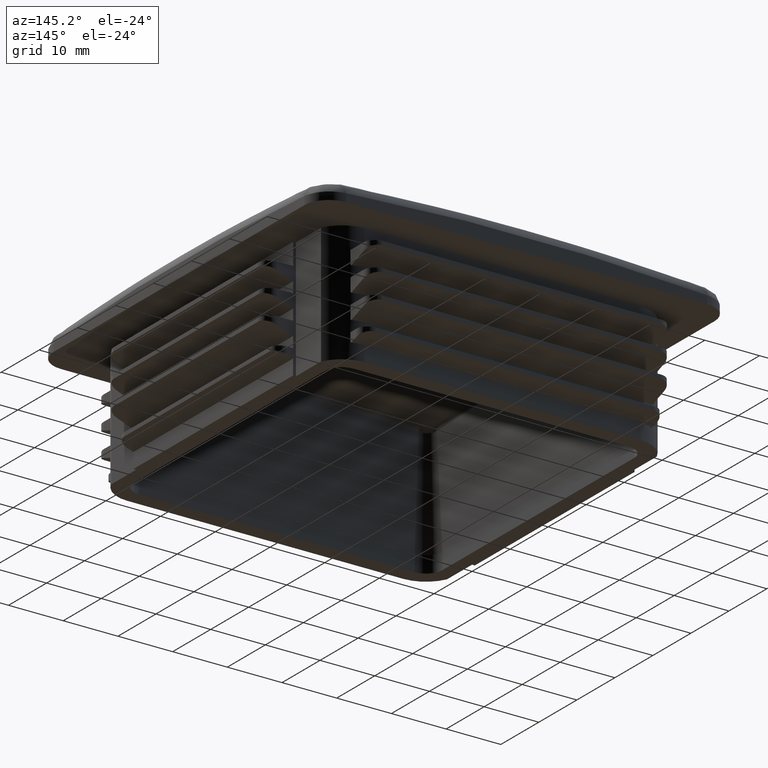
[diagram: clean part render]
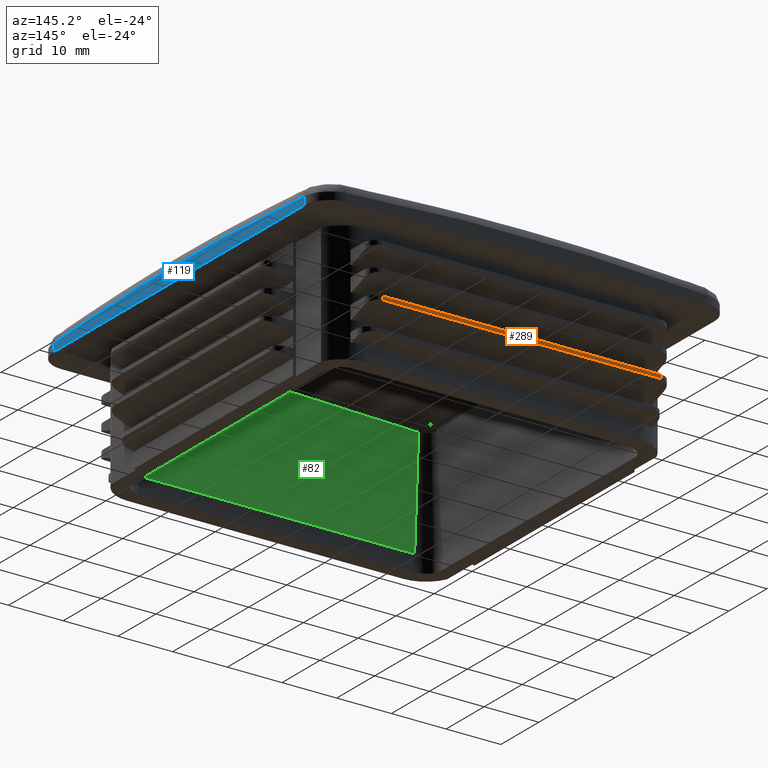
[diagram: same view with three faces highlighted in distinct colors, each labeled with its STEP entity id]
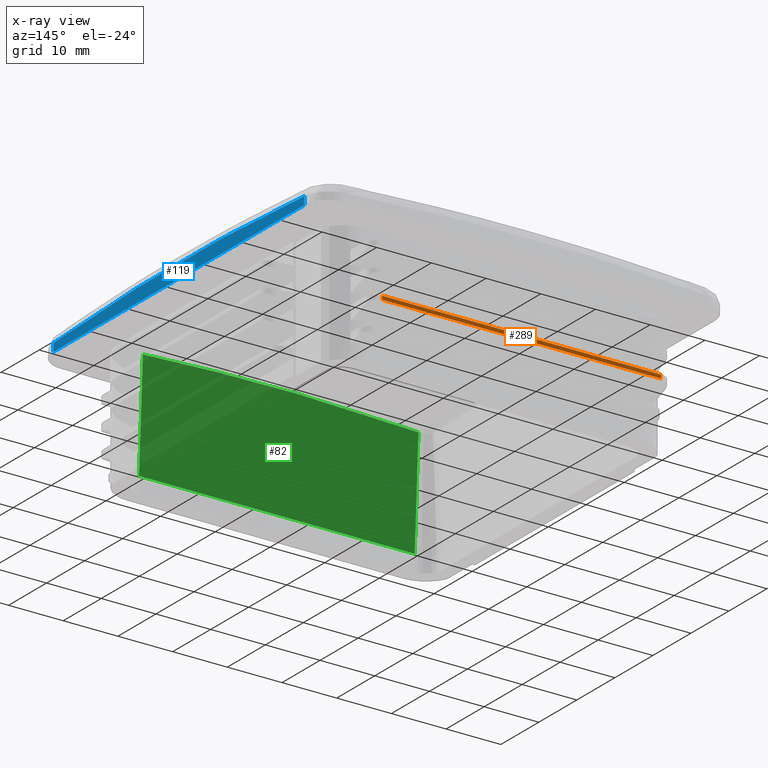
[diagram: x-ray of the same camera — body ghosted, the three highlighted faces saturated]
A machine part, auxiliary view with three faces highlighted in distinct colors.
The next image is the same camera in x-ray (body ghosted, the three faces saturated) — at least one of them is partly hidden behind the body in this view.
Their STEP definitions:

[orange] entity #289 — the highlighted planar face has unit normal (0, 1, -0).
#289 = ADVANCED_FACE( '', ( #767 ), #768, .T. );
#767 = FACE_OUTER_BOUND( '', #3423, .T. );
#768 = PLANE( '', #3424 );
#3423 = EDGE_LOOP( '', ( #5255, #5256, #5257, #5258 ) );
#3424 = AXIS2_PLACEMENT_3D( '', #5259, #5260, #5261 );
#5255 = ORIENTED_EDGE( '', *, *, #6155, .T. );
#5256 = ORIENTED_EDGE( '', *, *, #6156, .T. );
#5257 = ORIENTED_EDGE( '', *, *, #6149, .F. );
#5258 = ORIENTED_EDGE( '', *, *, #6157, .T. );
#5259 = CARTESIAN_POINT( '', ( -27.5000000000000, 36.2000000000000, 8.31985117133102 ) );
#5260 = DIRECTION( '', ( 6.12303176911189E-017, 1.00000000000000, -1.30563789952382E-016 ) );
#5261 = DIRECTION( '', ( 9.81400971114055E-032, -1.30563789952382E-016, -1.00000000000000 ) );
#6149 = EDGE_CURVE( '', #7222, #7223, #7224, .T. );
#6155 = EDGE_CURVE( '', #7232, #7233, #7234, .T. );
#6156 = EDGE_CURVE( '', #7233, #7223, #7235, .F. );
#6157 = EDGE_CURVE( '', #7222, #7232, #7236, .T. );
#7222 = VERTEX_POINT( '', #10425 );
#7223 = VERTEX_POINT( '', #10426 );
#7224 = LINE( '', #10427, #10428 );
#7232 = VERTEX_POINT( '', #10439 );
#7233 = VERTEX_POINT( '', #10440 );
#7234 = LINE( '', #10441, #10442 );
#7235 = LINE( '', #10443, #10444 );
#7236 = LINE( '', #10445, #10446 );
#10425 = CARTESIAN_POINT( '', ( -25.5000000000000, 36.2000000000000, 8.31985117133101 ) );
#10426 = CARTESIAN_POINT( '', ( 25.5000000000000, 36.2000000000000, 8.31985117133101 ) );
#10427 = CARTESIAN_POINT( '', ( -27.5000000000000, 36.2000000000000, 8.31985117133101 ) );
#10428 = VECTOR( '', #11267, 1000.00000000000 );
#10439 = CARTESIAN_POINT( '', ( -25.5000000000000, 36.2000000000000, 9.00000000000000 ) );
#10440 = CARTESIAN_POINT( '', ( 25.5000000000000, 36.2000000000000, 9.00000000000000 ) );
#10441 = CARTESIAN_POINT( '', ( -27.5000000000000, 36.2000000000000, 9.00000000000000 ) );
#10442 = VECTOR( '', #11277, 1000.00000000000 );
#10443 = CARTESIAN_POINT( '', ( 25.5000000000000, 36.2000000000000, 8.31985117133102 ) );
#10444 = VECTOR( '', #11278, 1000.00000000000 );
#10445 = CARTESIAN_POINT( '', ( -25.5000000000000, 36.2000000000000, 9.00000000000000 ) );
#10446 = VECTOR( '', #11279, 1000.00000000000 );
#11267 = DIRECTION( '', ( 1.00000000000000, -6.12303176911189E-017, 1.06134559449146E-031 ) );
#11277 = DIRECTION( '', ( 1.00000000000000, -6.12303176911189E-017, 1.06134559449146E-031 ) );
#11278 = DIRECTION( '', ( -3.45225119498087E-033, 1.30563789952382E-016, 1.00000000000000 ) );
#11279 = DIRECTION( '', ( -3.45225119498087E-033, 1.30563789952382E-016, 1.00000000000000 ) );

[blue] entity #119 — the highlighted planar face has unit normal (1, 0, 0).
#119 = ADVANCED_FACE( '', ( #426 ), #427, .T. );
#426 = FACE_OUTER_BOUND( '', #2901, .T. );
#427 = PLANE( '', #2902 );
#2901 = EDGE_LOOP( '', ( #3896, #3897, #3898, #3899 ) );
#2902 = AXIS2_PLACEMENT_3D( '', #3900, #3901, #3902 );
#3896 = ORIENTED_EDGE( '', *, *, #5759, .T. );
#3897 = ORIENTED_EDGE( '', *, *, #5761, .T. );
#3898 = ORIENTED_EDGE( '', *, *, #5762, .F. );
#3899 = ORIENTED_EDGE( '', *, *, #5777, .T. );
#3900 = CARTESIAN_POINT( '', ( 37.5000000000000, -33.0000000000000, -115.897606542837 ) );
#3901 = DIRECTION( '', ( 1.00000000000000, 0.000000000000000, 0.000000000000000 ) );
#3902 = DIRECTION( '', ( 0.000000000000000, 1.00000000000000, 0.000000000000000 ) );
#5759 = EDGE_CURVE( '', #6613, #6604, #6614, .T. );
#5761 = EDGE_CURVE( '', #6604, #6610, #6616, .T. );
#5762 = EDGE_CURVE( '', #6617, #6610, #6618, .T. );
#5777 = EDGE_CURVE( '', #6617, #6613, #6642, .T. );
#6604 = VERTEX_POINT( '', #9067 );
#6610 = VERTEX_POINT( '', #9122 );
#6613 = VERTEX_POINT( '', #9172 );
#6614 = LINE( '', #9173, #9174 );
#6616 = B_SPLINE_CURVE_WITH_KNOTS( '', 3, ( #9176, #9177, #9178, #9179, #9180, #9181, #9182, #9183, #9184, #9185, #9186, #9187, #9188, #9189, #9190, #9191, #9192, #9193, #9194, #9195, #9196 ), .UNSPECIFIED., .F., .F., ( 4, 2, 2, 2, 1, 1, 2, 1, 2, 2, 2, 4 ), ( 0.000000000000000, 0.00826076264689988, 0.0165215252937998, 0.0175541206246622, 0.0185867159555247, 0.0206519066172497, 0.0247822879406997, 0.0330430505875996, 0.0413038132344995, 0.0495645758813994, 0.0578253385282993, 0.0660861011751993 ), .UNSPECIFIED. );
#6617 = VERTEX_POINT( '', #9197 );
#6618 = LINE( '', #9198, #9199 );
#6642 = LINE( '', #9232, #9233 );
#9067 = CARTESIAN_POINT( '', ( 37.5000000000000, 33.0000000000000, 23.4707866158288 ) );
#9122 = CARTESIAN_POINT( '', ( 37.5000000000000, -33.0000000000000, 23.4707866158287 ) );
#9172 = CARTESIAN_POINT( '', ( 37.5000000000000, 33.0000000000000, 22.0000000000000 ) );
#9173 = CARTESIAN_POINT( '', ( 37.5000000000000, 33.0000000000000, -115.897606542837 ) );
#9174 = VECTOR( '', #10764, 1000.00000000000 );
#9176 = CARTESIAN_POINT( '', ( 37.5000000000000, 33.0000000000000, 23.4707866158288 ) );
#9177 = CARTESIAN_POINT( '', ( 37.5000000000000, 30.2524882750617, 23.6601460097570 ) );
#9178 = CARTESIAN_POINT( '', ( 37.5000000000000, 27.5037895216311, 23.8262044195161 ) );
#9179 = CARTESIAN_POINT( '', ( 37.5000000000000, 22.0040013968772, 24.1113941854427 ) );
#9180 = CARTESIAN_POINT( '', ( 37.5000000000000, 19.2529119375477, 24.2305238140784 ) );
#9181 = CARTESIAN_POINT( '', ( 37.5000000000000, 16.1565787595487, 24.3378966500946 ) );
#9182 = CARTESIAN_POINT( '', ( 37.5000000000000, 15.8125163182897, 24.3494570180182 ) );
#9183 = CARTESIAN_POINT( '', ( 37.5000000000000, 15.1243845295119, 24.3718355109569 ) );
#9184 = CARTESIAN_POINT( '', ( 37.5000000000000, 14.0922070957939, 24.4042889410379 ) );
#9185 = CARTESIAN_POINT( '', ( 37.5000000000000, 11.6839349423085, 24.4722072616271 ) );
#9186 = CARTESIAN_POINT( '', ( 37.5000000000000, 9.61994524987886, 24.5170188627936 ) );
#9187 = CARTESIAN_POINT( '', ( 37.5000000000000, 5.49229153445695, 24.5887207628098 ) );
#9188 = CARTESIAN_POINT( '', ( 37.5000000000000, -0.0103779633909322, 24.6365145816506 ) );
#9189 = CARTESIAN_POINT( '', ( 37.5000000000000, -5.51130623134273, 24.5884900528051 ) );
#9190 = CARTESIAN_POINT( '', ( 37.5000000000000, -11.0113673688849, 24.4927481011985 ) );
#9191 = CARTESIAN_POINT( '', ( 37.5000000000000, -13.7609644904649, 24.4210249082017 ) );
#9192 = CARTESIAN_POINT( '', ( 37.5000000000000, -19.2592986269129, 24.2302476073469 ) );
#9193 = CARTESIAN_POINT( '', ( 37.5000000000000, -22.0080357408729, 24.1111989524311 ) );
#9194 = CARTESIAN_POINT( '', ( 37.5000000000000, -27.5046566720554, 23.8261454746318 ) );
#9195 = CARTESIAN_POINT( '', ( 37.5000000000000, -30.2525405212099, 23.6601424089356 ) );
#9196 = CARTESIAN_POINT( '', ( 37.5000000000000, -33.0000000000000, 23.4707866158287 ) );
#9197 = CARTESIAN_POINT( '', ( 37.5000000000000, -33.0000000000000, 22.0000000000000 ) );
#9198 = CARTESIAN_POINT( '', ( 37.5000000000000, -33.0000000000000, -115.897606542837 ) );
#9199 = VECTOR( '', #10768, 1000.00000000000 );
#9232 = CARTESIAN_POINT( '', ( 37.5000000000000, -2.40001952768610E-031, 22.0000000000000 ) );
#9233 = VECTOR( '', #10793, 1000.00000000000 );
#10764 = DIRECTION( '', ( 0.000000000000000, 0.000000000000000, 1.00000000000000 ) );
#10768 = DIRECTION( '', ( 0.000000000000000, 0.000000000000000, 1.00000000000000 ) );
#10793 = DIRECTION( '', ( 0.000000000000000, 1.00000000000000, -6.12303176911189E-017 ) );

[green] entity #82 — the highlighted planar face has unit normal (-0, -0.9986, 0.0523).
#82 = ADVANCED_FACE( '', ( #342 ), #343, .F. );
#342 = FACE_OUTER_BOUND( '', #1177, .T. );
#343 = PLANE( '', #1178 );
#1177 = EDGE_LOOP( '', ( #3573, #3574, #3575, #3576 ) );
#1178 = AXIS2_PLACEMENT_3D( '', #3577, #3578, #3579 );
#3573 = ORIENTED_EDGE( '', *, *, #5598, .F. );
#3574 = ORIENTED_EDGE( '', *, *, #5585, .T. );
#3575 = ORIENTED_EDGE( '', *, *, #5599, .T. );
#3576 = ORIENTED_EDGE( '', *, *, #5600, .F. );
#3577 = CARTESIAN_POINT( '', ( -25.2000000000000, -28.2000000000000, 3.00000000000000 ) );
#3578 = DIRECTION( '', ( -4.92362374229332E-032, -0.998629534754574, 0.0523359562429438 ) );
#3579 = DIRECTION( '', ( 0.000000000000000, -0.0523359562429438, -0.998629534754574 ) );
#5585 = EDGE_CURVE( '', #6298, #6303, #6305, .T. );
#5598 = EDGE_CURVE( '', #6298, #6325, #6326, .T. );
#5599 = EDGE_CURVE( '', #6303, #6327, #6328, .T. );
#5600 = EDGE_CURVE( '', #6325, #6327, #6329, .T. );
#6298 = VERTEX_POINT( '', #7440 );
#6303 = VERTEX_POINT( '', #7467 );
#6305 = B_SPLINE_CURVE_WITH_KNOTS( '', 3, ( #7469, #7470, #7471, #7472, #7473, #7474, #7475, #7476, #7477, #7478, #7479, #7480, #7481, #7482, #7483, #7484, #7485, #7486, #7487, #7488 ), .UNSPECIFIED., .F., .F., ( 4, 2, 2, 2, 1, 2, 1, 2, 2, 2, 4 ), ( 0.000000000000000, 0.00630068714888859, 0.0126013742977772, 0.0189020614466658, 0.0252027485955544, 0.0315034357444430, 0.0346537793188873, 0.0362289511061094, 0.0378041228933316, 0.0441048100422202, 0.0504054971911087 ), .UNSPECIFIED. );
#6325 = VERTEX_POINT( '', #7783 );
#6326 = LINE( '', #7784, #7785 );
#6327 = VERTEX_POINT( '', #7786 );
#6328 = LINE( '', #7787, #7788 );
#6329 = LINE( '', #7789, #7790 );
#7440 = CARTESIAN_POINT( '', ( -25.2000000000000, -27.1730231167708, 22.5958862840344 ) );
#7467 = CARTESIAN_POINT( '', ( 25.2000000000000, -27.1730231167708, 22.5958862840343 ) );
#7469 = CARTESIAN_POINT( '', ( -25.2000000000000, -27.1730231167708, 22.5958862840344 ) );
#7470 = CARTESIAN_POINT( '', ( -23.1012153442577, -27.1671411588183, 22.7081207277159 ) );
#7471 = CARTESIAN_POINT( '', ( -21.0022251290489, -27.1619794779009, 22.8066114668404 ) );
#7472 = CARTESIAN_POINT( '', ( -16.8038299619242, -27.1531093467568, 22.9758636516389 ) );
#7473 = CARTESIAN_POINT( '', ( -14.7044249908805, -27.1494009635539, 23.0466238184228 ) );
#7474 = CARTESIAN_POINT( '', ( -10.5051953894106, -27.1434546768139, 23.1600857284936 ) );
#7475 = CARTESIAN_POINT( '', ( -8.40537068960463, -27.1412170163825, 23.2027828330457 ) );
#7476 = CARTESIAN_POINT( '', ( -4.20529664171809, -27.1382296561824, 23.2597850613591 ) );
#7477 = CARTESIAN_POINT( '', ( -0.00479776985442582, -27.1367308723039, 23.2883835614102 ) );
#7478 = CARTESIAN_POINT( '', ( 4.19655533477200, -27.1382253061633, 23.2598680646692 ) );
#7479 = CARTESIAN_POINT( '', ( 7.34788917390385, -27.1404639397406, 23.2171523913876 ) );
#7480 = CARTESIAN_POINT( '', ( 8.92363579792293, -27.1418625396395, 23.1904655155439 ) );
#7481 = CARTESIAN_POINT( '', ( 10.4995014134541, -27.1436780838659, 23.1558228679986 ) );
#7482 = CARTESIAN_POINT( '', ( 11.5501048589089, -27.1449808412485, 23.1309647763104 ) );
#7483 = CARTESIAN_POINT( '', ( 12.0753926724700, -27.1456783873999, 23.1176548028494 ) );
#7484 = CARTESIAN_POINT( '', ( 14.7016149608143, -27.1493960100162, 23.0467183375538 ) );
#7485 = CARTESIAN_POINT( '', ( 16.8020463223890, -27.1531058301597, 22.9759307523075 ) );
#7486 = CARTESIAN_POINT( '', ( 21.0018298658689, -27.1619783911664, 22.8066322029687 ) );
#7487 = CARTESIAN_POINT( '', ( 23.1011820970852, -27.1671410656413, 22.7081225056391 ) );
#7488 = CARTESIAN_POINT( '', ( 25.2000000000000, -27.1730231167708, 22.5958862840343 ) );
#7783 = CARTESIAN_POINT( '', ( -25.2000000000000, -28.2000000000000, 3.00000000000000 ) );
#7784 = CARTESIAN_POINT( '', ( -25.2000000000000, -28.2000000000000, 3.00000000000000 ) );
#7785 = VECTOR( '', #10636, 1000.00000000000 );
#7786 = CARTESIAN_POINT( '', ( 25.2000000000000, -28.2000000000000, 3.00000000000000 ) );
#7787 = CARTESIAN_POINT( '', ( 25.2000000000000, -28.2000000000000, 3.00000000000000 ) );
#7788 = VECTOR( '', #10637, 1000.00000000000 );
#7789 = CARTESIAN_POINT( '', ( -25.2000000000000, -28.2000000000000, 3.00000000000000 ) );
#7790 = VECTOR( '', #10638, 1000.00000000000 );
#10636 = DIRECTION( '', ( -2.58036186358850E-033, -0.0523359562429438, -0.998629534754574 ) );
#10637 = DIRECTION( '', ( 0.000000000000000, -0.0523359562429438, -0.998629534754574 ) );
#10638 = DIRECTION( '', ( 1.00000000000000, 0.000000000000000, 0.000000000000000 ) );